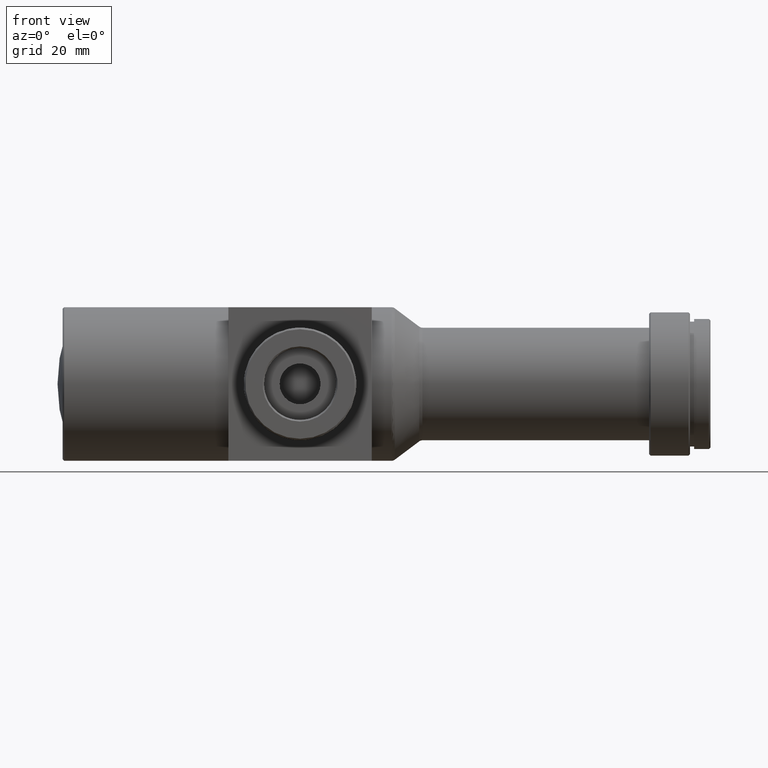
[diagram: clean part render]
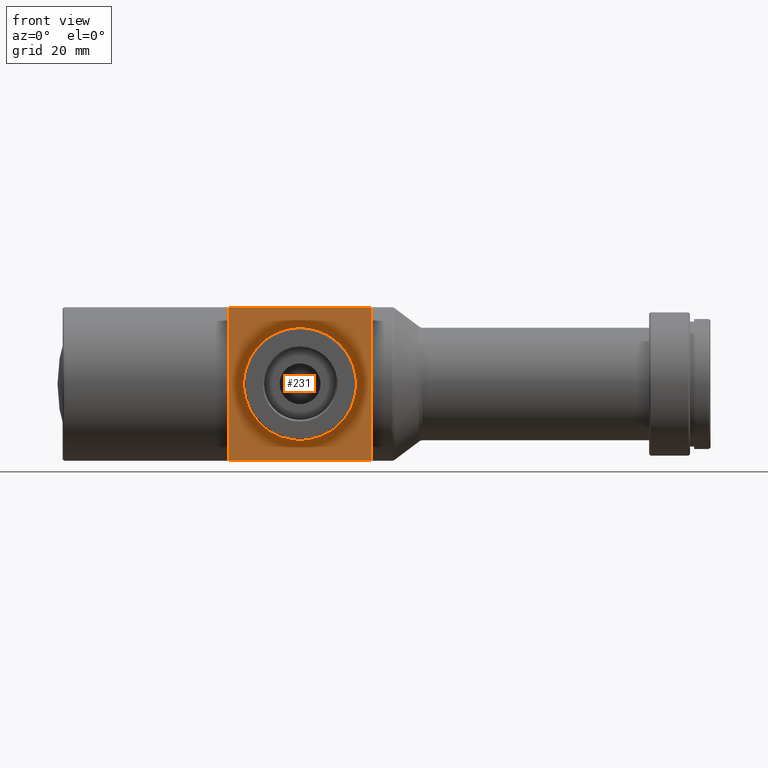
[diagram: same view with one face highlighted and labeled with its STEP entity id]
A machine part, front view. The second image highlights one B-rep face of the part: STEP entity #231.
In plain terms, the highlighted planar face has unit normal (0, 1, 0).
Its self-contained STEP definition (entity closure, byte-faithful):
#2 = CARTESIAN_POINT ( 'NONE',  ( 60.40000000000000568, -17.00000000000000000, 15.00000000000000000 ) ) ;
#28 = VECTOR ( 'NONE', #755, 1000.000000000000000 ) ;
#51 = VERTEX_POINT ( 'NONE', #998 ) ;
#54 = VERTEX_POINT ( 'NONE', #116 ) ;
#71 = VECTOR ( 'NONE', #808, 1000.000000000000000 ) ;
#79 = LINE ( 'NONE', #669, #579 ) ;
#116 = CARTESIAN_POINT ( 'NONE',  ( 32.39999999999999858, -17.00000000000000000, -15.00000000000000000 ) ) ;
#143 = ORIENTED_EDGE ( 'NONE', *, *, #1043, .T. ) ;
#151 = EDGE_LOOP ( 'NONE', ( #143, #732, #436, #1097 ) ) ;
#179 = CARTESIAN_POINT ( 'NONE',  ( 60.40000000000000568, -17.00000000000000000, 15.00000000000000000 ) ) ;
#231 = ADVANCED_FACE ( 'NONE', ( #1188, #435 ), #511, .F. ) ;
#243 = LINE ( 'NONE', #622, #327 ) ;
#273 = AXIS2_PLACEMENT_3D ( 'NONE', #1026, #1045, #947 ) ;
#296 = EDGE_LOOP ( 'NONE', ( #945 ) ) ;
#314 = EDGE_CURVE ( 'NONE', #563, #54, #243, .T. ) ;
#327 = VECTOR ( 'NONE', #424, 1000.000000000000000 ) ;
#345 = CARTESIAN_POINT ( 'NONE',  ( 32.39999999999999858, -17.00000000000000000, 15.00000000000000000 ) ) ;
#388 = VERTEX_POINT ( 'NONE', #1191 ) ;
#390 = AXIS2_PLACEMENT_3D ( 'NONE', #345, #812, #722 ) ;
#424 = DIRECTION ( 'NONE',  ( -1.000000000000000000, 0.000000000000000000, -0.000000000000000000 ) ) ;
#431 = CARTESIAN_POINT ( 'NONE',  ( 32.39999999999999858, -17.00000000000000000, 15.00000000000000000 ) ) ;
#435 = FACE_BOUND ( 'NONE', #296, .T. ) ;
#436 = ORIENTED_EDGE ( 'NONE', *, *, #680, .T. ) ;
#499 = EDGE_CURVE ( 'NONE', #51, #51, #1106, .T. ) ;
#511 = PLANE ( 'NONE',  #390 ) ;
#563 = VERTEX_POINT ( 'NONE', #1070 ) ;
#579 = VECTOR ( 'NONE', #658, 1000.000000000000000 ) ;
#622 = CARTESIAN_POINT ( 'NONE',  ( 0.000000000000000000, -17.00000000000000000, -15.00000000000000000 ) ) ;
#658 = DIRECTION ( 'NONE',  ( -1.000000000000000000, 0.000000000000000000, -0.000000000000000000 ) ) ;
#669 = CARTESIAN_POINT ( 'NONE',  ( 0.000000000000000000, -17.00000000000000000, 15.00000000000000000 ) ) ;
#680 = EDGE_CURVE ( 'NONE', #388, #54, #788, .T. ) ;
#722 = DIRECTION ( 'NONE',  ( 0.000000000000000000, -0.000000000000000000, 1.000000000000000000 ) ) ;
#732 = ORIENTED_EDGE ( 'NONE', *, *, #1019, .T. ) ;
#755 = DIRECTION ( 'NONE',  ( 0.000000000000000000, 0.000000000000000000, 1.000000000000000000 ) ) ;
#788 = LINE ( 'NONE', #431, #71 ) ;
#808 = DIRECTION ( 'NONE',  ( 0.000000000000000000, 0.000000000000000000, -1.000000000000000000 ) ) ;
#812 = DIRECTION ( 'NONE',  ( 0.000000000000000000, 1.000000000000000000, 0.000000000000000000 ) ) ;
#938 = VERTEX_POINT ( 'NONE', #2 ) ;
#945 = ORIENTED_EDGE ( 'NONE', *, *, #499, .F. ) ;
#947 = DIRECTION ( 'NONE',  ( -1.000000000000000000, 0.000000000000000000, 0.000000000000000000 ) ) ;
#998 = CARTESIAN_POINT ( 'NONE',  ( 35.39999999999999858, -17.00000000000000000, 0.000000000000000000 ) ) ;
#1019 = EDGE_CURVE ( 'NONE', #938, #388, #79, .T. ) ;
#1026 = CARTESIAN_POINT ( 'NONE',  ( 46.39999999999999858, -17.00000000000000000, 0.000000000000000000 ) ) ;
#1043 = EDGE_CURVE ( 'NONE', #563, #938, #1229, .T. ) ;
#1045 = DIRECTION ( 'NONE',  ( 1.306036860466260815E-16, -1.000000000000000000, -0.000000000000000000 ) ) ;
#1070 = CARTESIAN_POINT ( 'NONE',  ( 60.40000000000000568, -17.00000000000000000, -15.00000000000000000 ) ) ;
#1097 = ORIENTED_EDGE ( 'NONE', *, *, #314, .F. ) ;
#1106 = CIRCLE ( 'NONE', #273, 10.99999999999999645 ) ;
#1188 = FACE_OUTER_BOUND ( 'NONE', #151, .T. ) ;
#1191 = CARTESIAN_POINT ( 'NONE',  ( 32.39999999999999858, -17.00000000000000000, 15.00000000000000000 ) ) ;
#1229 = LINE ( 'NONE', #179, #28 ) ;